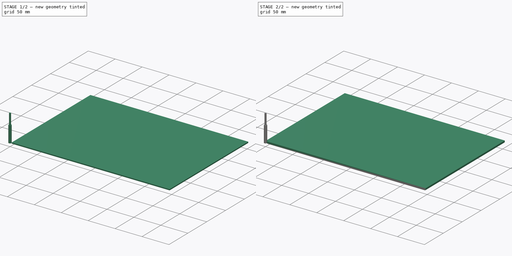
[diagram: build sequence overview — one tinted view per stage of 2, left to right]
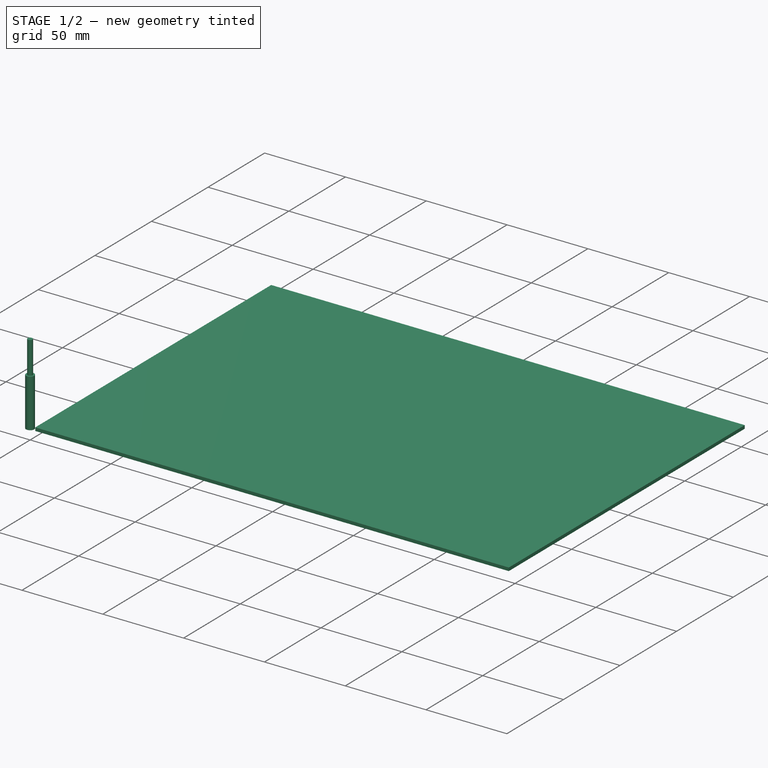
[diagram: stage 1 of 2 — iso view after this stage's code; geometry added in this stage tinted green]
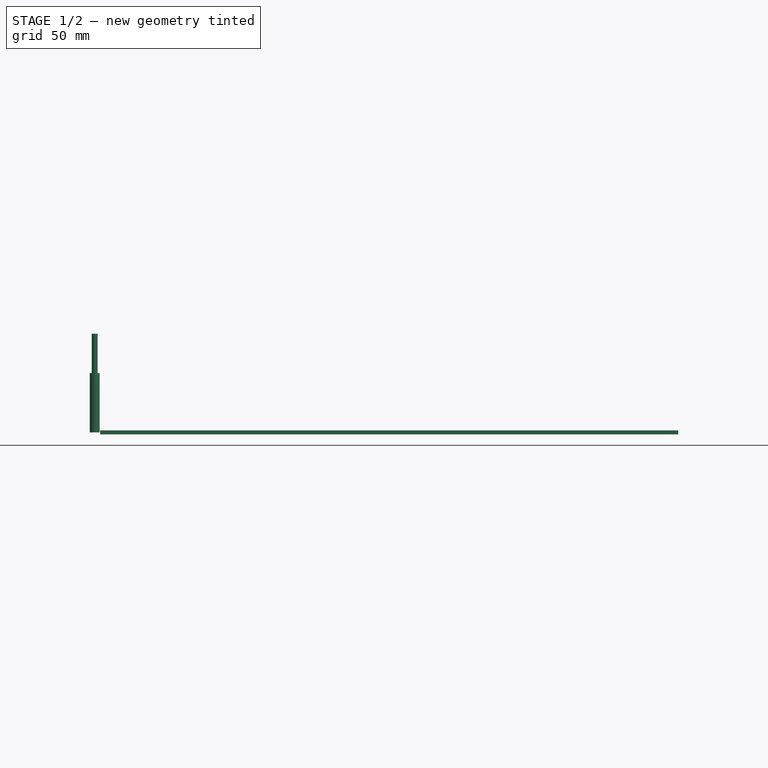
[diagram: stage 1 of 2 — front view after this stage's code; geometry added in this stage tinted green]
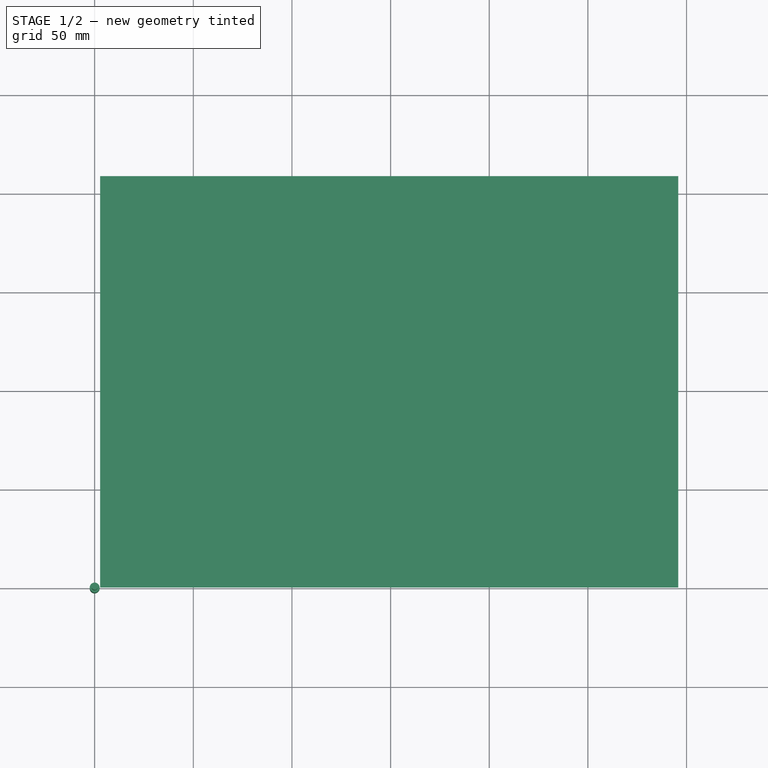
[diagram: stage 1 of 2 — top view after this stage's code; geometry added in this stage tinted green]
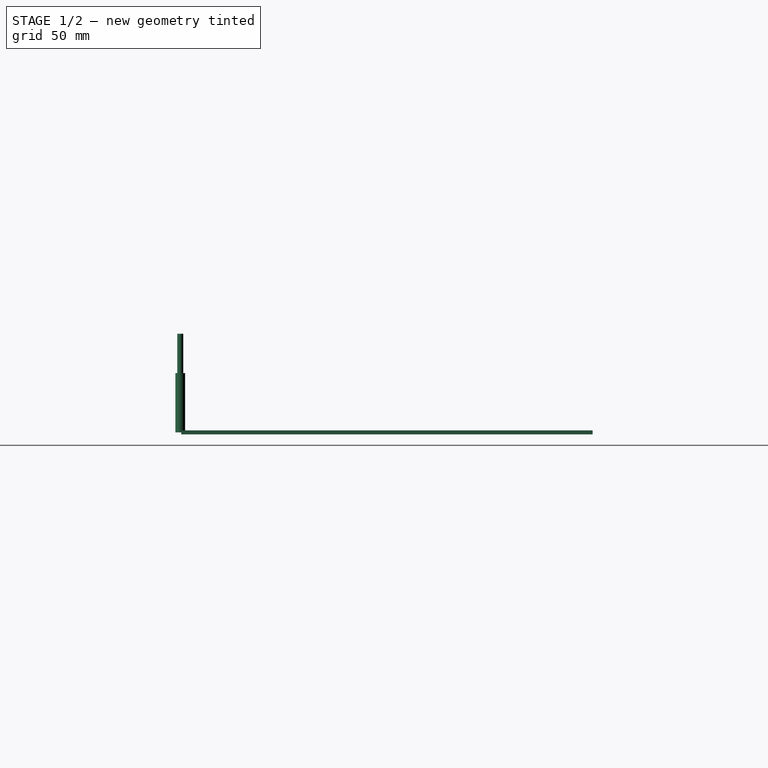
[diagram: stage 1 of 2 — right view after this stage's code; geometry added in this stage tinted green]
FCSTD DOCUMENT  (FreeCAD 0.20R29177 (Git))
Label: 1001_keyboard_paper_stencil_A4
License: All rights reserved
LicenseURL: http://en.wikipedia.org/wiki/All_rights_reserved
objects: Sketcher::SketchObject×6, Part::Part2DObjectPython×6, App::DocumentObjectGroup×3, Part::FeaturePython×3, Path::FeaturePython×3, PartDesign::Pad×1, PartDesign::Body×1, App::FeaturePython×1
note: 18 computed .brp shape members not serialized (recipe doc carries the construction recipe); baked Part::Feature solids carry a one-line shape summary decoded from their .brp

FEATURE [Part::FeaturePython] Stock  # WARN: FeaturePython — macro-defined, semantics opaque (R4)
  Base = -> Model
  ExtXneg = 1
  ExtXpos = 1
  ExtYneg = 1
  ExtYpos = 1
  ExtZneg = 1
  ExtZpos = 1
  Placement = pos=(3.79312,1.53857,0) rot=(0,0,1;0rad)
  StockType = FromBase
FEATURE [Part::FeaturePython] ToolBit001  label="Endmill003"  # Path/CAM toolbit (typed FeaturePython)
  BitPropertyNames = Chipload | CuttingEdgeHeight | Diameter | Flutes | Length | Material | ShankDiameter | SpindleDirection
  BitShape = <path> 0.20.0/Mod\Path\Tools\Shape\endmill.fcstd
  Chipload = 0
  CuttingEdgeHeight = 30
  Diameter = 5
  Flutes = 0
  Length = 50
  Material = 0
  ShankDiameter = 3
  ShapeName = endmill
  SpindleDirection = 0
FEATURE [Path::FeaturePython] TC__Default_Tool  label="TC: Default Tool"  # Path/CAM operation (typed FeaturePython)
  HorizFeed = 16.6667
  HorizRapid = 16.6667
  SpindleDir = 0
  SpindleSpeed = 1000
  Tool = -> ToolBit001
  ToolNumber = 1
  VertFeed = 16.6667
  VertRapid = 0.0333333
  expr: HorizRapid = SetupSheet.HorizRapid
  expr: VertRapid = SetupSheet.VertRapid
FEATURE [App::DocumentObjectGroup] Tools
  Group = -> [TC__Default_Tool]
FEATURE [Path::FeaturePython] Engrave  # Path/CAM operation (typed FeaturePython)
  Active = true
  ClearanceHeight = 6
  CoolantMode = 0
  CycleTime = 06:07:44
  FinalDepth = -5
  OpFinalDepth = -5
  OpStartDepth = 0
  OpStockZMax = 1
  OpStockZMin = -1
  OpToolDiameter = 5
  SafeHeight = 4
  StartDepth = 0
  StartVertex = 0
  StepDown = 5
  ToolController = -> TC__Default_Tool
  expr: ClearanceHeight = OpStockZMax + SetupSheet.ClearanceHeightOffset
  expr: FinalDepth = OpFinalDepth
  expr: SafeHeight = OpStockZMax + SetupSheet.SafeHeightOffset
  expr: StartDepth = OpStartDepth
  expr: StepDown = OpToolDiameter
FEATURE [App::DocumentObjectGroup] Operations
  Group = -> [Engrave]
FEATURE [Path::FeaturePython] Job  # Path/CAM operation (typed FeaturePython)
  CycleTime = 06:07:44
  Fixtures = G54
  GeometryTolerance = 0.01
  JobType = 0
  Model = -> Model
  Operations = -> Operations
  OrderOutputBy = 0
  PostProcessor = 8
  SetupSheet = -> SetupSheet
  SplitOutput = false
  Stock = -> Stock
  Tools = -> Tools
note: 2 file-system paths scrubbed to <path> (originals preserved in the JSON sidecar)
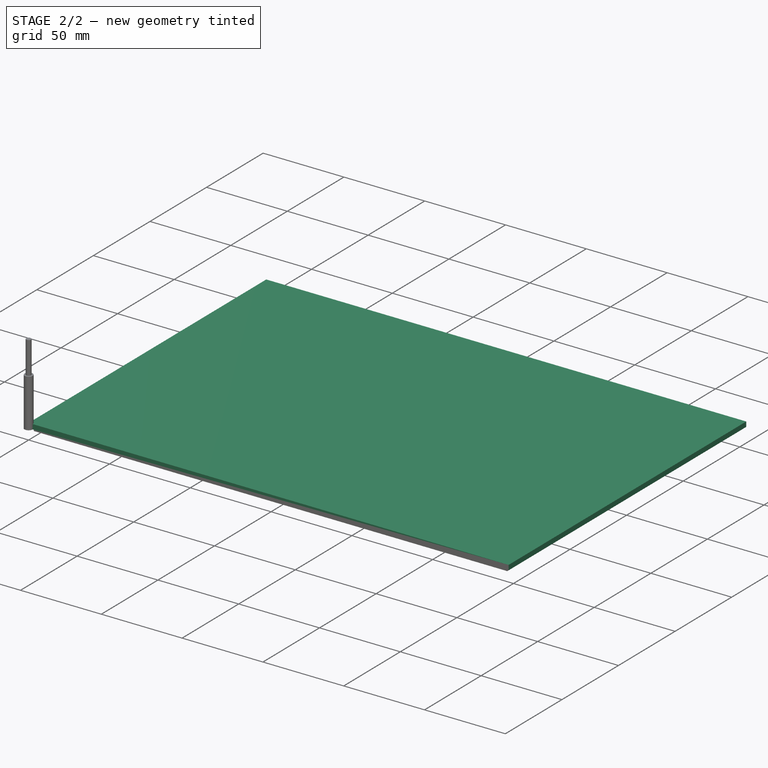
[diagram: stage 2 of 2 — iso view after this stage's code; geometry added in this stage tinted green]
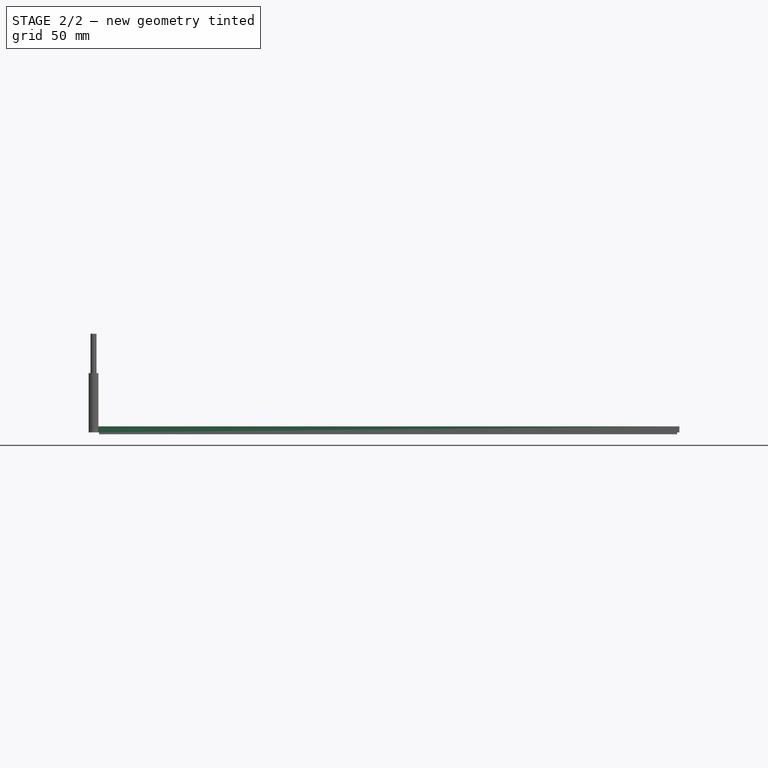
[diagram: stage 2 of 2 — front view after this stage's code; geometry added in this stage tinted green]
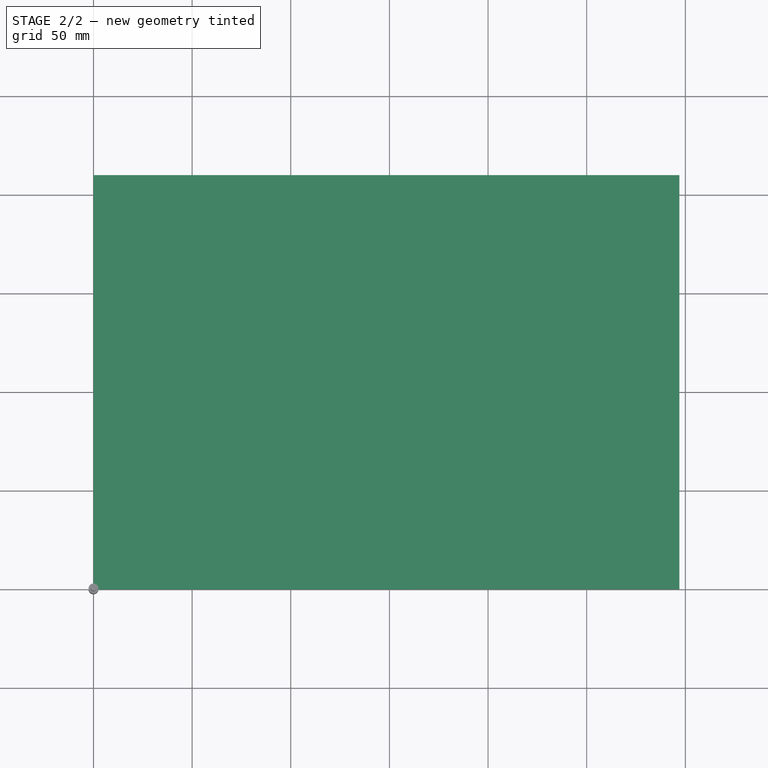
[diagram: stage 2 of 2 — top view after this stage's code; geometry added in this stage tinted green]
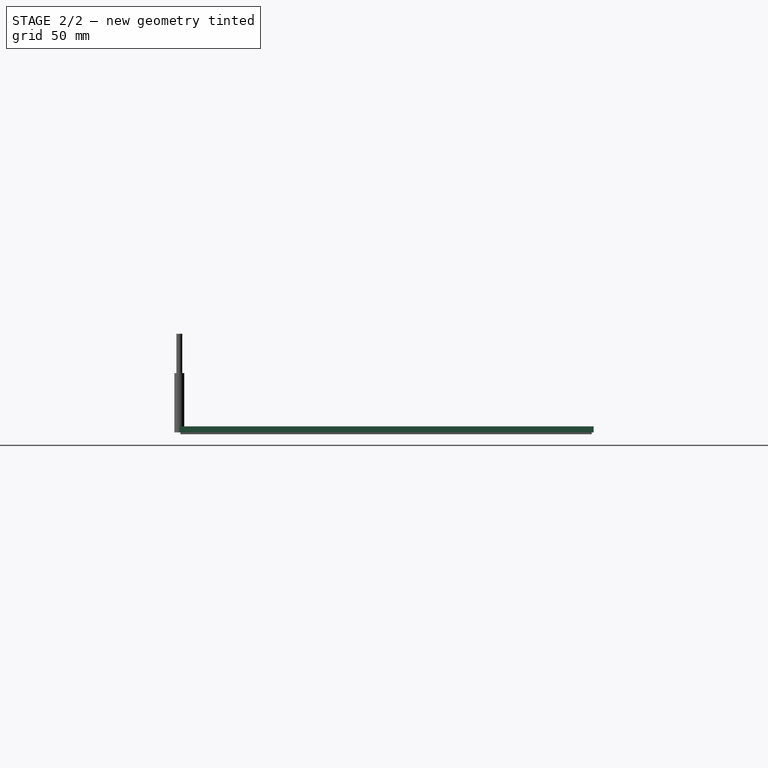
[diagram: stage 2 of 2 — right view after this stage's code; geometry added in this stage tinted green]
FEATURE [Sketcher::SketchObject] Sketch
  FullyConstrained = true
  MapMode = 5
  Support = -> [XY_Plane]
  sketch-geometry (5):
    g0: LineSegment StartX=0 StartY=210 StartZ=0 EndX=297 EndY=210 EndZ=0
    g1: LineSegment StartX=297 StartY=210 StartZ=0 EndX=297 EndY=0 EndZ=0
    g2: LineSegment StartX=297 StartY=0 StartZ=0 EndX=0 EndY=0 EndZ=0
    g3: LineSegment StartX=0 StartY=0 StartZ=0 EndX=0 EndY=105 EndZ=0
    g4: LineSegment StartX=0 StartY=105 StartZ=0 EndX=0 EndY=210 EndZ=0
  constraints (14):
    c: Coincident(g0,g1)
    c: Coincident(g1,g2)
    c: Horizontal(g0)
    c: Horizontal(g2)
    c: Vertical(g1)
    c: DistanceY(g1,g1) = 210
    c: DistanceX(g0,g0) = 297
    c: Coincident(g3,g2)
    c: Coincident(g4,g0)
    c: Equal(g3,g4)
    c: Vertical(g4)
    c: Vertical(g3)
    c: Coincident(g3,g4)
    c: Coincident(g2,g-1)
FEATURE [PartDesign::Pad] Pad  label="A4_Landscape"
  AllowMultiFace = false
  Direction = (0,0,1)
  Length = 3
  Length2 = 100
  Profile = -> Sketch
  ReferenceAxis = -> Sketch [N_Axis]
  Type = 0
FEATURE [PartDesign::Body] Body
  Group = -> [Sketch,Pad]
  Origin = -> Origin
  Tip = -> Pad
FEATURE [Sketcher::SketchObject] Sketch002  label="ButtonsLayoutSquare"
  FullyConstrained = false
  sketch-geometry (15):
    g0: LineSegment StartX=130.72 StartY=61.5386 StartZ=0 EndX=130.72 EndY=21.5386 EndZ=0
    g1: Circle CenterX=130.72 CenterY=61.5386 CenterZ=0 NormalX=0 NormalY=0 NormalZ=1 AngleXU=0 Radius=15
    g2: Circle CenterX=130.72 CenterY=21.5386 CenterZ=0 NormalX=0 NormalY=0 NormalZ=1 AngleXU=0 Radius=15
    g3: LineSegment StartX=130.72 StartY=61.5386 StartZ=0 EndX=170.72 EndY=61.5386 EndZ=0
    g4: LineSegment StartX=130.72 StartY=21.5386 StartZ=0 EndX=170.72 EndY=21.5386 EndZ=0
    g5: LineSegment StartX=170.72 StartY=21.5386 StartZ=0 EndX=170.72 EndY=61.5386 EndZ=0
    g6: Circle CenterX=170.72 CenterY=61.5386 CenterZ=0 NormalX=0 NormalY=0 NormalZ=1 AngleXU=0 Radius=14.5
    g7: Circle CenterX=170.72 CenterY=21.5386 CenterZ=0 NormalX=0 NormalY=0 NormalZ=1 AngleXU=0 Radius=15
    g8: LineSegment StartX=130.72 StartY=21.5386 StartZ=0 EndX=150.72 EndY=41.5386 EndZ=0
    g9: LineSegment StartX=150.72 StartY=41.5386 StartZ=0 EndX=170.72 EndY=61.5386 EndZ=0
    g10: LineSegment StartX=110.72 StartY=81.5386 StartZ=0 EndX=110.72 EndY=1.53857 EndZ=0
    g11: LineSegment StartX=110.72 StartY=1.53857 StartZ=0 EndX=190.72 EndY=1.53857 EndZ=0
    g12: LineSegment StartX=190.72 StartY=1.53857 StartZ=0 EndX=190.72 EndY=81.5386 EndZ=0
    g13: LineSegment StartX=190.72 StartY=81.5386 StartZ=0 EndX=110.72 EndY=81.5386 EndZ=0
    g14: Circle CenterX=150.72 CenterY=41.5386 CenterZ=0 NormalX=0 NormalY=0 NormalZ=1 AngleXU=0 Radius=56.5685
  constraints (35):
    c: Equal(g2,g1)
    c: Coincident(g3,g1)
    c: Coincident(g4,g2)
    c: Coincident(g5,g4)
    c: Coincident(g5,g3)
    c: Equal(g3,g5)
    c: Equal(g5,g4)
    c: Coincident(g6,g3)
    c: Coincident(g7,g4)
    c: Coincident(g1,g0)
    c: Coincident(g0,g2)
    c: Angle(g0,g3) = 1.5708
    c: Distance(g6,g1) = 40
    c: Diameter(g6) = 29
    c: Vertical(g5)
    c: Vertical(g0)
    c: Coincident(g8,g2)
    c: Coincident(g9,g8)
    c: Coincident(g9,g6)
    c: Equal(g9,g8)
    c: Parallel(g9,g8)
    c: Coincident(g10,g11)
    c: Coincident(g11,g12)
    c: Coincident(g12,g13)
    c: Coincident(g13,g10)
    c: Equal(g10,g11)
    c: Equal(g10,g12)
    c: Equal(g10,g13)
    c: PointOnObject(g10,g14)
    c: PointOnObject(g11,g14)
    c: PointOnObject(g12,g14)
    c: PointOnObject(g13,g14)
    c: Coincident(g14,g8)
    c: Horizontal(g13)
    c: DistanceX(g13,g13) = 80
FEATURE [Sketcher::SketchObject] Sketch003  label="JoystickLayout4Way"
  FullyConstrained = false
  sketch-geometry (39):
    g0: LineSegment StartX=5 StartY=60 StartZ=0 EndX=100 EndY=60 EndZ=0
    g1: LineSegment StartX=100 StartY=60 StartZ=0 EndX=100 EndY=5 EndZ=0
    g2: LineSegment StartX=100 StartY=5 StartZ=0 EndX=52.5 EndY=5 EndZ=0
    g3: LineSegment StartX=52.5 StartY=5 StartZ=0 EndX=5 EndY=5 EndZ=0
    g4: LineSegment StartX=5 StartY=5 StartZ=0 EndX=5 EndY=32.5 EndZ=0
    g5: LineSegment StartX=5 StartY=32.5 StartZ=0 EndX=5 EndY=60 EndZ=0
    g6: LineSegment StartX=5 StartY=32.5 StartZ=0 EndX=52.5 EndY=32.5 EndZ=0
    g7: Circle CenterX=52.5 CenterY=32.5 CenterZ=0 NormalX=0 NormalY=0 NormalZ=1 AngleXU=0 Radius=15
    g8: LineSegment StartX=52.5 StartY=32.5 StartZ=0 EndX=100 EndY=32.5 EndZ=0
    g9: ArcOfCircle CenterX=10.5 CenterY=52.5 CenterZ=0 NormalX=0 NormalY=0 NormalZ=1 AngleXU=0 Radius=2.6 StartAngle=1.5708 EndAngle=4.71239
    g10: ArcOfCircle CenterX=13.1 CenterY=52.5 CenterZ=0 NormalX=0 NormalY=0 NormalZ=1 AngleXU=0 Radius=2.6 StartAngle=4.71239 EndAngle=7.85398
    g11: LineSegment StartX=10.5 StartY=49.9 StartZ=0 EndX=13.1 EndY=49.9 EndZ=0
    g12: LineSegment StartX=13.1 StartY=55.1 StartZ=0 EndX=10.5 EndY=55.1 EndZ=0
    g13: LineSegment StartX=10.5 StartY=55.1 StartZ=0 EndX=7.9 EndY=55.1 EndZ=0
    g14: LineSegment StartX=13.1 StartY=55.1 StartZ=0 EndX=15.7 EndY=55.1 EndZ=0
    g15: ArcOfCircle CenterX=94.5 CenterY=52.5 CenterZ=0 NormalX=0 NormalY=0 NormalZ=1 AngleXU=0 Radius=2.6 StartAngle=4.71239 EndAngle=7.85398
    g16: LineSegment StartX=94.5 StartY=55.1 StartZ=0 EndX=91.9 EndY=55.1 EndZ=0
    g17: LineSegment StartX=91.9 StartY=49.9 StartZ=0 EndX=94.5 EndY=49.9 EndZ=0
    g18: ArcOfCircle CenterX=91.9 CenterY=52.5 CenterZ=0 NormalX=0 NormalY=0 NormalZ=1 AngleXU=0 Radius=2.6 StartAngle=1.5708 EndAngle=4.71239
    g19: LineSegment StartX=10.5 StartY=9.9 StartZ=0 EndX=13.1 EndY=9.9 EndZ=0
    g20: ArcOfCircle CenterX=13.1 CenterY=12.5 CenterZ=0 NormalX=0 NormalY=0 NormalZ=1 AngleXU=0 Radius=2.6 StartAngle=4.71239 EndAngle=7.85398
    g21: LineSegment StartX=13.1 StartY=15.1 StartZ=0 EndX=10.5 EndY=15.1 EndZ=0
    g22: ArcOfCircle CenterX=10.5 CenterY=12.5 CenterZ=0 NormalX=0 NormalY=0 NormalZ=1 AngleXU=0 Radius=2.6 StartAngle=1.5708 EndAngle=4.71239
    g23: ArcOfCircle CenterX=91.9 CenterY=12.5 CenterZ=0 NormalX=0 NormalY=0 NormalZ=1 AngleXU=0 Radius=2.6 StartAngle=1.5708 EndAngle=4.71239
    g24: LineSegment StartX=91.9 StartY=9.9 StartZ=0 EndX=94.5 EndY=9.9 EndZ=0
    g25: LineSegment StartX=94.5 StartY=15.1 StartZ=0 EndX=91.9 EndY=15.1 EndZ=0
    g26: ArcOfCircle CenterX=94.5 CenterY=12.5 CenterZ=0 NormalX=0 NormalY=0 NormalZ=1 AngleXU=0 Radius=2.6 StartAngle=4.71239 EndAngle=7.85398
    g27: LineSegment StartX=52.5 StartY=5 StartZ=0 EndX=52.5 EndY=7.9007 EndZ=0
    g28: LineSegment StartX=5 StartY=32.5 StartZ=0 EndX=7.9007 EndY=32.5 EndZ=0
    g29: LineSegment StartX=100 StartY=32.5 StartZ=0 EndX=97.0993 EndY=32.5 EndZ=0
    g30: LineSegment StartX=52.5 StartY=60 StartZ=0 EndX=52.5 EndY=57.0993 EndZ=0
    g31: LineSegment StartX=100 StartY=60 StartZ=0 EndX=43 EndY=60 EndZ=0
    g32: LineSegment StartX=43 StartY=60 StartZ=0 EndX=43 EndY=70 EndZ=0
    g33: LineSegment StartX=23 StartY=70 StartZ=0 EndX=23 EndY=60 EndZ=0
    g34: LineSegment StartX=23 StartY=60 StartZ=0 EndX=5 EndY=60 EndZ=0
    g35: LineSegment StartX=23 StartY=70 StartZ=0 EndX=33 EndY=70 EndZ=0
    g36: LineSegment StartX=33 StartY=70 StartZ=0 EndX=43 EndY=70 EndZ=0
    g37: LineSegment StartX=10.5 StartY=49.9 StartZ=0 EndX=10.5 EndY=32.5 EndZ=0
    g38: LineSegment StartX=10.5 StartY=32.5 StartZ=0 EndX=10.5 EndY=15.1 EndZ=0
  constraints (107):
    c: Coincident(g0,g1)
    c: Coincident(g1,g2)
    c: Horizontal(g0)
    c: Horizontal(g2)
    c: Vertical(g1)
    c: DistanceY(g1,g1) = 55
    c: DistanceX(g0,g0) = 95
    c: Coincident(g3,g2)
    c: Coincident(g4,g3)
    c: Coincident(g5,g4)
    c: Coincident(g5,g0)
    c: Vertical(g5)
    c: Vertical(g4)
    c: Horizontal(g3)
    c: Equal(g3,g2)
    c: Equal(g4,g5)
    c: Coincident(g6,g4)
    c: Horizontal(g6)
    c: Coincident(g7,g6)
    c: Coincident(g8,g6)
    c: PointOnObject(g8,g1)
    c: Horizontal(g8)
    c: Equal(g8,g6)
    c: Diameter(g7) = 30
    c: Tangent(g9,g11) = -1.5708
    c: Tangent(g11,g10) = -1.5708
    c: Tangent(g10,g12) = -1.5708
    c: Tangent(g12,g9) = -1.5708
    c: Equal(g9,g10)
    c: Horizontal(g11)
    c: DistanceY(g10,g10) = 5.2
    c: Coincident(g13,g9)
    c: Horizontal(g13)
    c: Coincident(g14,g10)
    c: Horizontal(g14)
    c: Equal(g14,g13)
    c: DistanceX(g13,g13) = 2.6
    c: DistanceX(g13,g14) = 7.8
    c: Tangent(g18,g17) = -1.5708
    c: Tangent(g17,g15) = -1.5708
    c: Tangent(g15,g16) = -1.5708
    c: Tangent(g16,g18) = -1.5708
    c: Equal(g18,g15)
    c: Horizontal(g17)
    c: Equal(g10,g15) = 5.2
    c: Tangent(g22,g19) = -1.5708
    c: Tangent(g19,g20) = -1.5708
    c: Tangent(g20,g21) = -1.5708
    c: Tangent(g21,g22) = -1.5708
    c: Equal(g22,g20)
    c: Horizontal(g19)
    c: Equal(g10,g20) = 5.2
    c: Tangent(g23,g24) = -1.5708
    c: Tangent(g24,g26) = -1.5708
    c: Tangent(g26,g25) = -1.5708
    c: Tangent(g25,g23) = -1.5708
    c: Equal(g23,g26)
    c: Horizontal(g24)
    c: Equal(g10,g26) = 5.2
    c: Equal(g21,g16)
    c: Equal(g16,g25)
    c: Equal(g25,g11)
    c: Vertical(g21,g9)
    c: DistanceX(g9,g6) = 42
    c: Horizontal(g23,g20)
    c: Vertical(g23,g17)
    c: DistanceX(g9,g15) = 84
    c: Horizontal(g10,g16)
    c: Coincident(g27,g2)
    c: Vertical(g27)
    c: Coincident(g28,g4)
    c: PointOnObject(g28,g6)
    c: Equal(g28,g27)
    c: Coincident(g29,g8)
    c: PointOnObject(g29,g8)
    c: Equal(g29,g27)
    c: PointOnObject(g30,g0)
    c: Vertical(g30)
    c: Equal(g30,g29)
    c: Vertical(g30,g27)
    c: Coincident(g31,g1)
    c: PointOnObject(g31,g0)
    c: Coincident(g32,g31)
    c: Vertical(g32)
    c: PointOnObject(g33,g0)
    c: Vertical(g33)
    c: Coincident(g34,g33)
    c: Coincident(g34,g5)
    c: DistanceX(g33,g32) = 20
    c: DistanceY(g33,g33) = 10
    c: Coincident(g35,g33)
    c: Horizontal(g35)
    c: Coincident(g36,g35)
    c: Coincident(g36,g32)
    c: Horizontal(g36)
    c: Equal(g36,g35)
    c: DistanceX(g5,g35) = 28
    c: Coincident(g37,g9)
    c: PointOnObject(g37,g6)
    c: Vertical(g37)
    c: Coincident(g38,g37)
    c: Coincident(g38,g21)
    c: Equal(g38,g37)
    c: DistanceY(g22,g9) = 40
    c: DistanceX(g-1,g3) = 5
    c: DistanceY(g-1,g3) = 5
    c: DistanceX(g7,g15) = 42
FEATURE [Sketcher::SketchObject] Sketch007  label="JoystickAnalog"
  FullyConstrained = false
  MapMode = 5
  Support = -> [XY_Plane]
  sketch-geometry (90):
    g0: Circle CenterX=243.803 CenterY=44.6561 CenterZ=0 NormalX=0 NormalY=0 NormalZ=1 AngleXU=0 Radius=20
    g1: LineSegment StartX=243.803 StartY=44.6561 StartZ=0 EndX=201.303 EndY=44.6561 EndZ=0
    g2: LineSegment StartX=243.803 StartY=44.6561 StartZ=0 EndX=286.303 EndY=44.6561 EndZ=0
    g3: LineSegment StartX=201.303 StartY=44.6561 StartZ=0 EndX=201.303 EndY=64.6561 EndZ=0
    g4: LineSegment StartX=201.303 StartY=44.6561 StartZ=0 EndX=201.303 EndY=24.6561 EndZ=0
    g5: LineSegment StartX=286.303 StartY=44.6561 StartZ=0 EndX=286.303 EndY=24.6561 EndZ=0
    g6: LineSegment StartX=286.303 StartY=44.6561 StartZ=0 EndX=286.303 EndY=64.6561 EndZ=0
    g7: LineSegment StartX=243.803 StartY=44.6561 StartZ=0 EndX=243.803 EndY=74.6561 EndZ=0
    g8: LineSegment StartX=243.803 StartY=44.6561 StartZ=0 EndX=243.803 EndY=14.6561 EndZ=0
    g9: LineSegment StartX=243.803 StartY=74.6561 StartZ=0 EndX=196.303 EndY=74.6561 EndZ=0
    g10: LineSegment StartX=243.803 StartY=74.6561 StartZ=0 EndX=291.303 EndY=74.6561 EndZ=0
    g11: LineSegment StartX=243.803 StartY=14.6561 StartZ=0 EndX=196.303 EndY=14.6561 EndZ=0
    g12: LineSegment StartX=196.303 StartY=14.6561 StartZ=0 EndX=196.303 EndY=74.6561 EndZ=0
    g13: LineSegment StartX=243.803 StartY=14.6561 StartZ=0 EndX=291.303 EndY=14.6561 EndZ=0
    g14: LineSegment StartX=291.303 StartY=14.6561 StartZ=0 EndX=291.303 EndY=74.6561 EndZ=0
    g15: ArcOfCircle CenterX=201.303 CenterY=64.6561 CenterZ=0 NormalX=0 NormalY=0 NormalZ=1 AngleXU=0 Radius=2.5 StartAngle=1.5708 EndAngle=4.71239
    g16: ArcOfCircle CenterX=206.303 CenterY=64.6561 CenterZ=0 NormalX=0 NormalY=0 NormalZ=1 AngleXU=0 Radius=2.5 StartAngle=4.71239 EndAngle=7.85398
    g17: LineSegment StartX=201.303 StartY=62.1561 StartZ=0 EndX=206.303 EndY=62.1561 EndZ=0
    g18: LineSegment StartX=206.303 StartY=67.1561 StartZ=0 EndX=201.303 EndY=67.1561 EndZ=0
    g19: ArcOfCircle CenterX=201.303 CenterY=24.6561 CenterZ=0 NormalX=0 NormalY=0 NormalZ=1 AngleXU=0 Radius=2.5 StartAngle=1.5708 EndAngle=4.71239
    g20: ArcOfCircle CenterX=206.303 CenterY=24.6561 CenterZ=0 NormalX=0 NormalY=0 NormalZ=1 AngleXU=0 Radius=2.5 StartAngle=4.71239 EndAngle=7.85398
    g21: LineSegment StartX=201.303 StartY=22.1561 StartZ=0 EndX=206.303 EndY=22.1561 EndZ=0
    g22: LineSegment StartX=206.303 StartY=27.1561 StartZ=0 EndX=201.303 EndY=27.1561 EndZ=0
    g23: ArcOfCircle CenterX=286.303 CenterY=24.6561 CenterZ=0 NormalX=0 NormalY=0 NormalZ=1 AngleXU=0 Radius=2.5 StartAngle=4.71239 EndAngle=7.85398
    g24: ArcOfCircle CenterX=281.303 CenterY=24.6561 CenterZ=0 NormalX=0 NormalY=0 NormalZ=1 AngleXU=0 Radius=2.5 StartAngle=1.5708 EndAngle=4.71239
    g25: LineSegment StartX=286.303 StartY=27.1561 StartZ=0 EndX=281.303 EndY=27.1561 EndZ=0
    g26: LineSegment StartX=281.303 StartY=22.1561 StartZ=0 EndX=286.303 EndY=22.1561 EndZ=0
    g27: ArcOfCircle CenterX=286.303 CenterY=64.6561 CenterZ=0 NormalX=0 NormalY=0 NormalZ=1 AngleXU=0 Radius=2.5 StartAngle=4.71239 EndAngle=7.85398
    g28: ArcOfCircle CenterX=281.303 CenterY=64.6561 CenterZ=0 NormalX=0 NormalY=0 NormalZ=1 AngleXU=0 Radius=2.5 StartAngle=1.5708 EndAngle=4.71239
    g29: LineSegment StartX=286.303 StartY=67.1561 StartZ=0 EndX=281.303 EndY=67.1561 EndZ=0
    g30: LineSegment StartX=281.303 StartY=62.1561 StartZ=0 EndX=286.303 EndY=62.1561 EndZ=0
    g31: LineSegment StartX=201.303 StartY=44.6561 StartZ=0 EndX=196.303 EndY=44.6561 EndZ=0
    g32: LineSegment StartX=286.303 StartY=44.6561 StartZ=0 EndX=291.303 EndY=44.6561 EndZ=0
    g33: LineSegment StartX=243.803 StartY=74.6561 StartZ=0 EndX=243.803 EndY=69.6561 EndZ=0
    g34: LineSegment StartX=196.303 StartY=14.6561 StartZ=0 EndX=236.303 EndY=14.6561 EndZ=0
    g35: LineSegment StartX=236.303 StartY=14.6561 StartZ=0 EndX=236.303 EndY=2.65615 EndZ=0
    g36: LineSegment StartX=236.303 StartY=2.65615 StartZ=0 EndX=251.303 EndY=2.65615 EndZ=0
    g37: LineSegment StartX=251.303 StartY=2.65615 StartZ=0 EndX=251.303 EndY=14.6561 EndZ=0
    g38: LineSegment StartX=251.303 StartY=14.6561 StartZ=0 EndX=291.303 EndY=14.6561 EndZ=0
    g39: LineSegment StartX=196.303 StartY=74.6561 StartZ=0 EndX=228.803 EndY=74.6561 EndZ=0
    g40: LineSegment StartX=228.803 StartY=74.6561 StartZ=0 EndX=228.803 EndY=78.6561 EndZ=0
    g41: LineSegment StartX=233.803 StartY=78.6561 StartZ=0 EndX=233.803 EndY=74.6561 EndZ=0
    g42: LineSegment StartX=233.803 StartY=74.6561 StartZ=0 EndX=243.803 EndY=74.6561 EndZ=0
    g43: LineSegment StartX=228.803 StartY=78.6561 StartZ=0 EndX=231.303 EndY=78.6561 EndZ=0
    g44: LineSegment StartX=231.303 StartY=78.6561 StartZ=0 EndX=233.803 EndY=78.6561 EndZ=0
    g45: Circle CenterX=242.711 CenterY=174.033 CenterZ=0 NormalX=0 NormalY=0 NormalZ=1 AngleXU=0 Radius=20
    g46: LineSegment StartX=242.711 StartY=174.033 StartZ=0 EndX=200.211 EndY=174.033 EndZ=0
    g47: LineSegment StartX=242.711 StartY=174.033 StartZ=0 EndX=285.211 EndY=174.033 EndZ=0
    g48: LineSegment StartX=200.211 StartY=174.033 StartZ=0 EndX=200.211 EndY=194.033 EndZ=0
    g49: LineSegment StartX=200.211 StartY=174.033 StartZ=0 EndX=200.211 EndY=154.033 EndZ=0
    g50: LineSegment StartX=285.211 StartY=174.033 StartZ=0 EndX=285.211 EndY=154.033 EndZ=0
    g51: LineSegment StartX=285.211 StartY=174.033 StartZ=0 EndX=285.211 EndY=194.033 EndZ=0
    g52: LineSegment StartX=242.711 StartY=174.033 StartZ=0 EndX=242.711 EndY=204.033 EndZ=0
    g53: LineSegment StartX=242.711 StartY=174.033 StartZ=0 EndX=242.711 EndY=144.033 EndZ=0
    g54: LineSegment StartX=242.711 StartY=204.033 StartZ=0 EndX=195.211 EndY=204.033 EndZ=0
    g55: LineSegment StartX=242.711 StartY=204.033 StartZ=0 EndX=290.211 EndY=204.033 EndZ=0
    g56: LineSegment StartX=242.711 StartY=144.033 StartZ=0 EndX=195.211 EndY=144.033 EndZ=0
    g57: LineSegment StartX=195.211 StartY=144.033 StartZ=0 EndX=195.211 EndY=204.033 EndZ=0
    g58: LineSegment StartX=242.711 StartY=144.033 StartZ=0 EndX=290.211 EndY=144.033 EndZ=0
    g59: LineSegment StartX=290.211 StartY=144.033 StartZ=0 EndX=290.211 EndY=204.033 EndZ=0
    g60: ArcOfCircle CenterX=200.211 CenterY=194.033 CenterZ=0 NormalX=0 NormalY=0 NormalZ=1 AngleXU=0 Radius=2.5 StartAngle=1.5708 EndAngle=4.71239
    g61: ArcOfCircle CenterX=205.211 CenterY=194.033 CenterZ=0 NormalX=0 NormalY=0 NormalZ=1 AngleXU=0 Radius=2.5 StartAngle=4.71239 EndAngle=7.85398
    g62: LineSegment StartX=200.211 StartY=191.533 StartZ=0 EndX=205.211 EndY=191.533 EndZ=0
    g63: LineSegment StartX=205.211 StartY=196.533 StartZ=0 EndX=200.211 EndY=196.533 EndZ=0
    g64: ArcOfCircle CenterX=200.211 CenterY=154.033 CenterZ=0 NormalX=0 NormalY=0 NormalZ=1 AngleXU=0 Radius=2.5 StartAngle=1.5708 EndAngle=4.71239
    g65: ArcOfCircle CenterX=205.211 CenterY=154.033 CenterZ=0 NormalX=0 NormalY=0 NormalZ=1 AngleXU=0 Radius=2.5 StartAngle=4.71239 EndAngle=7.85398
    g66: LineSegment StartX=200.211 StartY=151.533 StartZ=0 EndX=205.211 EndY=151.533 EndZ=0
    g67: LineSegment StartX=205.211 StartY=156.533 StartZ=0 EndX=200.211 EndY=156.533 EndZ=0
    g68: ArcOfCircle CenterX=285.211 CenterY=154.033 CenterZ=0 NormalX=0 NormalY=0 NormalZ=1 AngleXU=0 Radius=2.5 StartAngle=4.71239 EndAngle=7.85398
    g69: ArcOfCircle CenterX=280.211 CenterY=154.033 CenterZ=0 NormalX=0 NormalY=0 NormalZ=1 AngleXU=0 Radius=2.5 StartAngle=1.5708 EndAngle=4.71239
    g70: LineSegment StartX=285.211 StartY=156.533 StartZ=0 EndX=280.211 EndY=156.533 EndZ=0
    g71: LineSegment StartX=280.211 StartY=151.533 StartZ=0 EndX=285.211 EndY=151.533 EndZ=0
    g72: ArcOfCircle CenterX=285.211 CenterY=194.033 CenterZ=0 NormalX=0 NormalY=0 NormalZ=1 AngleXU=0 Radius=2.5 StartAngle=4.71239 EndAngle=7.85398
    g73: ArcOfCircle CenterX=280.211 CenterY=194.033 CenterZ=0 NormalX=0 NormalY=0 NormalZ=1 AngleXU=0 Radius=2.5 StartAngle=1.5708 EndAngle=4.71239
    g74: LineSegment StartX=285.211 StartY=196.533 StartZ=0 EndX=280.211 EndY=196.533 EndZ=0
    g75: LineSegment StartX=280.211 StartY=191.533 StartZ=0 EndX=285.211 EndY=191.533 EndZ=0
    g76: LineSegment StartX=200.211 StartY=174.033 StartZ=0 EndX=195.211 EndY=174.033 EndZ=0
    g77: LineSegment StartX=285.211 StartY=174.033 StartZ=0 EndX=290.211 EndY=174.033 EndZ=0
    g78: LineSegment StartX=242.711 StartY=204.033 StartZ=0 EndX=242.711 EndY=199.033 EndZ=0
    g79: LineSegment StartX=195.211 StartY=144.033 StartZ=0 EndX=235.211 EndY=144.033 EndZ=0
    g80: LineSegment StartX=235.211 StartY=144.033 StartZ=0 EndX=235.211 EndY=132.033 EndZ=0
    g81: LineSegment StartX=235.211 StartY=132.033 StartZ=0 EndX=250.211 EndY=132.033 EndZ=0
    g82: LineSegment StartX=250.211 StartY=132.033 StartZ=0 EndX=250.211 EndY=144.033 EndZ=0
    g83: LineSegment StartX=250.211 StartY=144.033 StartZ=0 EndX=290.211 EndY=144.033 EndZ=0
    g84: LineSegment StartX=195.211 StartY=204.033 StartZ=0 EndX=227.711 EndY=204.033 EndZ=0
    g85: LineSegment StartX=227.711 StartY=204.033 StartZ=0 EndX=227.711 EndY=208.033 EndZ=0
    g86: LineSegment StartX=232.711 StartY=208.033 StartZ=0 EndX=232.711 EndY=204.033 EndZ=0
    g87: LineSegment StartX=232.711 StartY=204.033 StartZ=0 EndX=242.711 EndY=204.033 EndZ=0
    g88: LineSegment StartX=227.711 StartY=208.033 StartZ=0 EndX=230.211 EndY=208.033 EndZ=0
    g89: LineSegment StartX=230.211 StartY=208.033 StartZ=0 EndX=232.711 EndY=208.033 EndZ=0
  constraints (234):
    c: Diameter(g0) = 40
    c: Coincident(g1,g0)
    c: Horizontal(g1)
    c: Coincident(g2,g0)
    c: Horizontal(g2)
    c: Coincident(g3,g1)
    c: Vertical(g3)
    c: Coincident(g4,g1)
    c: Vertical(g4)
    c: Coincident(g5,g2)
    c: Vertical(g5)
    c: Coincident(g6,g2)
    c: Vertical(g6)
    c: Equal(g4,g3)
    c: Equal(g3,g5)
    c: Equal(g5,g6)
    c: Equal(g2,g1)
    c: Coincident(g7,g0)
    c: Vertical(g7)
    c: Coincident(g8,g0)
    c: Vertical(g8)
    c: Equal(g8,g7)
    c: DistanceY(g4,g3) = 40
    c: DistanceX(g3,g6) = 85
    c: DistanceY(g8,g7) = 60
    c: Coincident(g9,g7)
    c: Coincident(g10,g9)
    c: Equal(g10,g9)
    c: Horizontal(g9)
    c: Horizontal(g10)
    c: DistanceX(g9,g10) = 95
    c: Coincident(g11,g8)
    c: Horizontal(g11)
    c: Coincident(g12,g9)
    c: Vertical(g12)
    c: Coincident(g13,g11)
    c: Coincident(g14,g13)
    c: Coincident(g14,g10)
    c: Horizontal(g13)
    c: Vertical(g14)
    c: Coincident(g11,g12)
    c: Tangent(g15,g17) = -1.5708
    c: Tangent(g17,g16) = -1.5708
    c: Tangent(g16,g18) = -1.5708
    c: Tangent(g18,g15) = -1.5708
    c: Equal(g15,g16)
    c: Coincident(g15,g3)
    c: Horizontal(g17)
    c: Tangent(g19,g21) = -1.5708
    c: Tangent(g21,g20) = -1.5708
    c: Tangent(g20,g22) = -1.5708
    c: Tangent(g22,g19) = -1.5708
    c: Equal(g19,g20)
    c: Coincident(g19,g4)
    c: Horizontal(g21)
    c: Tangent(g23,g25) = -1.5708
    c: Tangent(g25,g24) = -1.5708
    c: Tangent(g24,g26) = -1.5708
    c: Tangent(g26,g23) = -1.5708
    c: Equal(g23,g24)
    c: Coincident(g23,g5)
    c: Horizontal(g25)
    c: Tangent(g27,g29) = -1.5708
    c: Tangent(g29,g28) = -1.5708
    c: Tangent(g28,g30) = -1.5708
    c: Tangent(g30,g27) = -1.5708
    c: Equal(g27,g28)
    c: Coincident(g27,g6)
    c: Horizontal(g29)
    c: Equal(g18,g22)
    c: Equal(g22,g25)
    c: Equal(g25,g29)
    c: Equal(g20,g24)
    c: Equal(g24,g28)
    c: Equal(g28,g16)
    c: Diameter(g16) = 5
    c: DistanceX(g18,g18) = 5
    c: Coincident(g31,g1)
    c: PointOnObject(g31,g12)
    c: Horizontal(g31)
    c: Coincident(g32,g2)
    c: PointOnObject(g32,g14)
    c: Horizontal(g32)
    c: Coincident(g33,g9)
    c: PointOnObject(g33,g7)
    c: Equal(g33,g32)
    c: Coincident(g34,g12)
    c: PointOnObject(g34,g11)
    c: Coincident(g35,g34)
    c: Vertical(g35)
    c: Coincident(g36,g35)
    c: Horizontal(g36)
    c: Coincident(g37,g36)
    c: PointOnObject(g37,g13)
    c: Coincident(g38,g37)
    c: Coincident(g38,g14)
    c: Equal(g38,g34)
    c: DistanceX(g36,g36) = 15
    c: DistanceY(g35,g35) = 12
    c: Coincident(g39,g12)
    c: PointOnObject(g39,g9)
    c: Coincident(g40,g39)
    c: PointOnObject(g41,g9)
    c: Coincident(g42,g41)
    c: Coincident(g42,g10)
    c: Vertical(g40)
    c: Vertical(g41)
    c: Coincident(g43,g40)
    c: Horizontal(g43)
    c: Coincident(g44,g43)
    c: Coincident(g44,g41)
    c: Horizontal(g44)
    c: Equal(g44,g43)
    c: DistanceX(g12,g43) = 35
    c: DistanceX(g40,g41) = 5
    c: DistanceY(g40,g40) = 4
    c: Vertical(g37)
    c: Equal(g0,g45) = 40
    c: Coincident(g46,g45)
    c: Horizontal(g46)
    c: Coincident(g47,g45)
    c: Horizontal(g47)
    c: Coincident(g48,g46)
    c: Vertical(g48)
    c: Coincident(g49,g46)
    c: Vertical(g49)
    c: Coincident(g50,g47)
    c: Vertical(g50)
    c: Coincident(g51,g47)
    c: Vertical(g51)
    c: Equal(g49,g48)
    c: Equal(g48,g50)
    c: Equal(g50,g51)
    c: Equal(g47,g46)
    c: Coincident(g52,g45)
    c: Vertical(g52)
    c: Coincident(g53,g45)
    c: Vertical(g53)
    c: Equal(g53,g52)
    c: DistanceY(g49,g48) = 40
    c: DistanceX(g48,g51) = 85
    c: DistanceY(g53,g52) = 60
    c: Coincident(g54,g52)
    c: Coincident(g55,g54)
    c: Equal(g55,g54)
    c: Horizontal(g54)
    c: Horizontal(g55)
    c: DistanceX(g54,g55) = 95
    c: Coincident(g56,g53)
    c: Horizontal(g56)
    c: Coincident(g57,g54)
    c: Vertical(g57)
    c: Coincident(g58,g56)
    c: Coincident(g59,g58)
    c: Coincident(g59,g55)
    c: Horizontal(g58)
    c: Vertical(g59)
    c: Coincident(g56,g57)
    c: Tangent(g60,g62) = -1.5708
    c: Tangent(g62,g61) = -1.5708
    c: Tangent(g61,g63) = -1.5708
    c: Tangent(g63,g60) = -1.5708
    c: Equal(g60,g61)
    c: Coincident(g60,g48)
    c: Horizontal(g62)
    c: Tangent(g64,g66) = -1.5708
    c: Tangent(g66,g65) = -1.5708
    c: Tangent(g65,g67) = -1.5708
    c: Tangent(g67,g64) = -1.5708
    c: Equal(g64,g65)
    c: Coincident(g64,g49)
    c: Horizontal(g66)
    c: Tangent(g68,g70) = -1.5708
    c: Tangent(g70,g69) = -1.5708
    c: Tangent(g69,g71) = -1.5708
    c: Tangent(g71,g68) = -1.5708
    c: Equal(g68,g69)
    c: Coincident(g68,g50)
    c: Horizontal(g70)
    c: Tangent(g72,g74) = -1.5708
    c: Tangent(g74,g73) = -1.5708
    c: Tangent(g73,g75) = -1.5708
    c: Tangent(g75,g72) = -1.5708
    c: Equal(g72,g73)
    c: Coincident(g72,g51)
    c: Horizontal(g74)
    c: Equal(g63,g67)
    c: Equal(g67,g70)
    c: Equal(g70,g74)
    c: Equal(g65,g69)
    c: Equal(g69,g73)
    c: Equal(g73,g61)
    c: Equal(g16,g61) = 5
    c: Equal(g18,g63) = 5
    c: Coincident(g76,g46)
    c: PointOnObject(g76,g57)
    c: Horizontal(g76)
    c: Coincident(g77,g47)
    c: PointOnObject(g77,g59)
    c: Horizontal(g77)
    c: Coincident(g78,g54)
    c: PointOnObject(g78,g52)
    c: Equal(g78,g77)
    c: Coincident(g79,g57)
    c: PointOnObject(g79,g56)
    c: Coincident(g80,g79)
    c: Vertical(g80)
    c: Coincident(g81,g80)
    c: Horizontal(g81)
    c: Coincident(g82,g81)
    c: PointOnObject(g82,g58)
    c: Coincident(g83,g82)
    c: Coincident(g83,g59)
    c: Equal(g83,g79)
    c: Equal(g36,g81) = 15
    c: Equal(g35,g80) = 12
    c: Coincident(g84,g57)
    c: PointOnObject(g84,g54)
    c: Coincident(g85,g84)
    c: PointOnObject(g86,g54)
    c: Coincident(g87,g86)
    c: Coincident(g87,g55)
    c: Vertical(g85)
    c: Vertical(g86)
    c: Coincident(g88,g85)
    c: Horizontal(g88)
    c: Coincident(g89,g88)
    c: Coincident(g89,g86)
    c: Horizontal(g89)
    c: Equal(g89,g88)
    c: DistanceX(g57,g88) = 35
    c: DistanceX(g85,g86) = 5
    c: Equal(g40,g85) = 4
    c: Vertical(g82)
FEATURE [Sketcher::SketchObject] Sketch008  label="ButtonsLayoutLTLS"
  FullyConstrained = false
  sketch-geometry (10):
    g0: Circle CenterX=130.908 CenterY=145.635 CenterZ=0 NormalX=0 NormalY=0 NormalZ=1 AngleXU=0 Radius=15
    g1: Circle CenterX=170.908 CenterY=145.635 CenterZ=0 NormalX=0 NormalY=0 NormalZ=1 AngleXU=0 Radius=14.5
    g2: LineSegment StartX=190.908 StartY=165.635 StartZ=0 EndX=110.908 EndY=165.635 EndZ=0
    g3: LineSegment StartX=150.908 StartY=125.635 StartZ=0 EndX=110.908 EndY=125.635 EndZ=0
    g4: LineSegment StartX=150.908 StartY=125.635 StartZ=0 EndX=190.908 EndY=125.635 EndZ=0
    g5: LineSegment StartX=190.908 StartY=165.635 StartZ=0 EndX=190.908 EndY=125.635 EndZ=0
    g6: LineSegment StartX=110.908 StartY=165.635 StartZ=0 EndX=110.908 EndY=145.635 EndZ=0
    g7: LineSegment StartX=110.908 StartY=145.635 StartZ=0 EndX=110.908 EndY=125.635 EndZ=0
    g8: LineSegment StartX=130.908 StartY=145.635 StartZ=0 EndX=150.908 EndY=145.635 EndZ=0
    g9: LineSegment StartX=150.908 StartY=145.635 StartZ=0 EndX=170.908 EndY=145.635 EndZ=0
  constraints (26):
    c: Distance(g1,g0) = 40
    c: Diameter(g1) = 29
    c: Horizontal(g2)
    c: DistanceX(g2,g2) = 80
    c: Horizontal(g3)
    c: Coincident(g4,g3)
    c: Horizontal(g4)
    c: Coincident(g5,g2)
    c: Coincident(g5,g4)
    c: Vertical(g5)
    c: Coincident(g6,g2)
    c: Vertical(g6)
    c: Coincident(g7,g6)
    c: Coincident(g7,g3)
    c: Vertical(g7)
    c: Coincident(g8,g0)
    c: Horizontal(g8)
    c: Coincident(g9,g8)
    c: Coincident(g9,g1)
    c: Horizontal(g9)
    c: Horizontal(g0,g6)
    c: Vertical(g8,g3)
    c: Equal(g7,g6)
    c: Equal(g4,g3)
    c: Equal(g9,g8)
    c: DistanceY(g5,g5) = 40
FEATURE [Sketcher::SketchObject] Sketch009  label="ButtonsLayoutSelHotStart"
  FullyConstrained = false
  sketch-geometry (12):
    g0: Circle CenterX=234.806 CenterY=103.895 CenterZ=0 NormalX=0 NormalY=0 NormalZ=1 AngleXU=0 Radius=15
    g1: Circle CenterX=194.806 CenterY=103.895 CenterZ=0 NormalX=0 NormalY=0 NormalZ=1 AngleXU=0 Radius=15
    g2: LineSegment StartX=234.806 StartY=103.895 StartZ=0 EndX=274.806 EndY=103.895 EndZ=0
    g3: Circle CenterX=274.806 CenterY=103.895 CenterZ=0 NormalX=0 NormalY=0 NormalZ=1 AngleXU=0 Radius=14.5
    g4: LineSegment StartX=234.806 StartY=103.895 StartZ=0 EndX=194.806 EndY=103.895 EndZ=0
    g5: LineSegment StartX=234.806 StartY=103.895 StartZ=0 EndX=234.806 EndY=123.895 EndZ=0
    g6: LineSegment StartX=234.806 StartY=123.895 StartZ=0 EndX=174.806 EndY=123.895 EndZ=0
    g7: LineSegment StartX=174.806 StartY=123.895 StartZ=0 EndX=174.806 EndY=83.8953 EndZ=0
    g8: LineSegment StartX=174.806 StartY=83.8953 StartZ=0 EndX=294.806 EndY=83.8953 EndZ=0
    g9: LineSegment StartX=294.806 StartY=83.8953 StartZ=0 EndX=294.806 EndY=103.895 EndZ=0
    g10: LineSegment StartX=294.806 StartY=103.895 StartZ=0 EndX=294.806 EndY=123.895 EndZ=0
    g11: LineSegment StartX=294.806 StartY=123.895 StartZ=0 EndX=234.806 EndY=123.895 EndZ=0
  constraints (30):
    c: Equal(g1,g0)
    c: Coincident(g2,g0)
    c: Coincident(g3,g2)
    c: Distance(g3,g0) = 40
    c: Diameter(g3) = 29
    c: Coincident(g4,g0)
    c: Coincident(g4,g1)
    c: Equal(g4,g2)
    c: Horizontal(g4)
    c: Coincident(g5,g0)
    c: Vertical(g5)
    c: Coincident(g6,g5)
    c: Horizontal(g6)
    c: Coincident(g7,g6)
    c: Vertical(g7)
    c: Horizontal(g8)
    c: Coincident(g9,g8)
    c: Vertical(g9)
    c: Coincident(g10,g9)
    c: Vertical(g10)
    c: Coincident(g11,g10)
    c: Coincident(g11,g6)
    c: Horizontal(g11)
    c: Horizontal(g9,g3)
    c: Equal(g11,g6)
    c: Coincident(g8,g7)
    c: Equal(g9,g10)
    c: Horizontal(g2)
    c: DistanceY(g7,g7) = 40
    c: DistanceX(g6,g10) = 120
FEATURE [App::FeaturePython] SetupSheet  # Path/CAM operation (typed FeaturePython)
  ClearanceHeightExpression = OpStockZMax+SetupSheet.ClearanceHeightOffset
  ClearanceHeightOffset = 5
  CoolantMode = 0
  CoolantModes = None | Flood | Mist
  FinalDepthExpression = OpFinalDepth
  HorizRapid = 16.6667
  SafeHeightExpression = OpStockZMax+SetupSheet.SafeHeightOffset
  SafeHeightOffset = 3
  StartDepthExpression = OpStartDepth
  StepDownExpression = OpToolDiameter
  VertRapid = 0.0333333
FEATURE [Part::Part2DObjectPython] Clone2D  label="Model-ButtonsLayoutLTLS"  # Draft 2D object (typed FeaturePython)
  Fuse = false
  Objects = -> [Sketch008]
  PathResource = Model
  Scale = (1,1,1)
FEATURE [Part::Part2DObjectPython] Clone2D001  label="Model-ButtonsLayoutSelHotStart"  # Draft 2D object (typed FeaturePython)
  Fuse = false
  Objects = -> [Sketch009]
  PathResource = Model
  Scale = (1,1,1)
FEATURE [Part::Part2DObjectPython] Clone2D002  label="Model-ButtonsLayoutSquare"  # Draft 2D object (typed FeaturePython)
  Fuse = false
  Objects = -> [Sketch002]
  PathResource = Model
  Scale = (1,1,1)
FEATURE [Part::Part2DObjectPython] Clone2D003  label="Model-JoystickAnalog"  # Draft 2D object (typed FeaturePython)
  Fuse = false
  Objects = -> [Sketch007]
  PathResource = Model
  Scale = (1,1,1)
FEATURE [Part::Part2DObjectPython] Clone2D004  label="Model-JoystickLayout4Way"  # Draft 2D object (typed FeaturePython)
  Fuse = false
  Objects = -> [Sketch003]
  PathResource = Model
  Scale = (1,1,1)
FEATURE [Part::Part2DObjectPython] Clone2D005  label="Model-PCB002"  # Draft 2D object (typed FeaturePython)
  Fuse = false
  PathResource = Model
  Scale = (1,1,1)
FEATURE [App::DocumentObjectGroup] Model
  Group = -> [Clone2D,Clone2D001,Clone2D002,Clone2D003,Clone2D004,Clone2D005]
FEATURE [Part::FeaturePython] ToolBit  label="Endmill"  # Path/CAM toolbit (typed FeaturePython)
  BitPropertyNames = Chipload | CuttingEdgeHeight | Diameter | Flutes | Length | Material | ShankDiameter | SpindleDirection
  BitShape = <path> 0.20.0/Mod\Path\Tools\Shape\endmill.fcstd
  Chipload = 0
  CuttingEdgeHeight = 30
  Diameter = 5
  Flutes = 0
  Length = 50
  Material = 0
  ShankDiameter = 3
  ShapeName = endmill
  SpindleDirection = 0
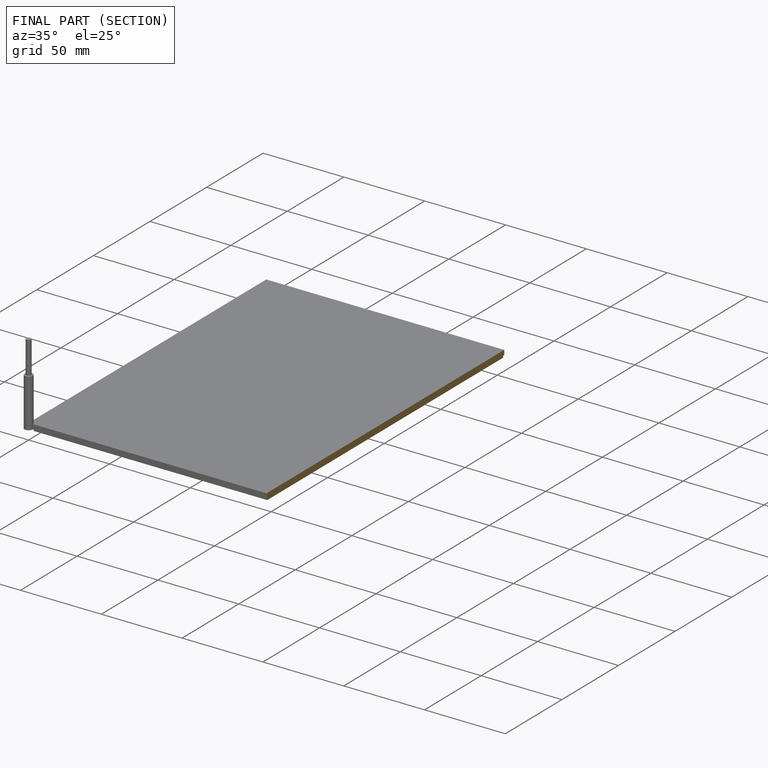
[diagram: finished part — half-section view (interior)]
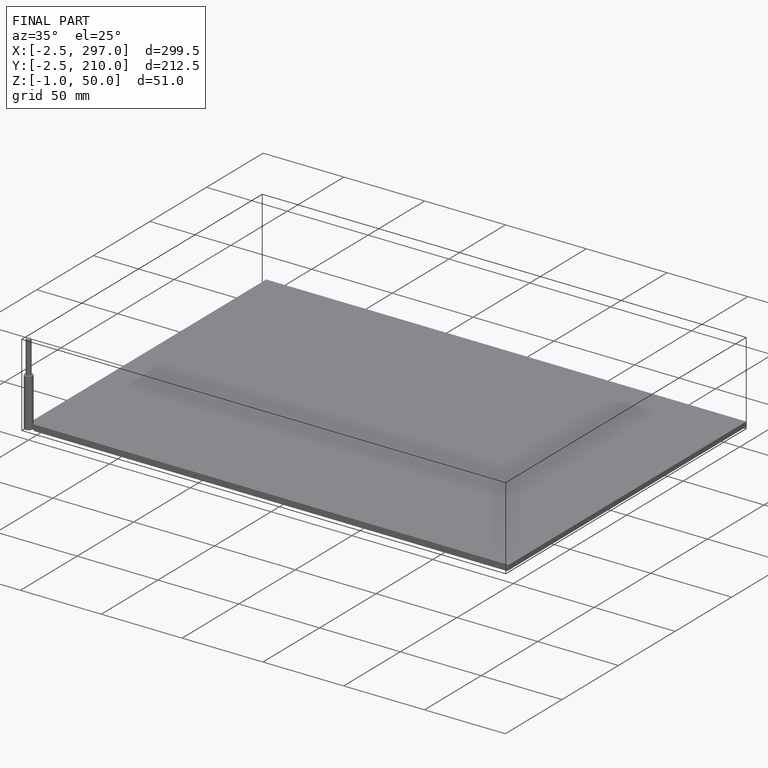
[diagram: finished part — iso view with bounding-box wireframe]
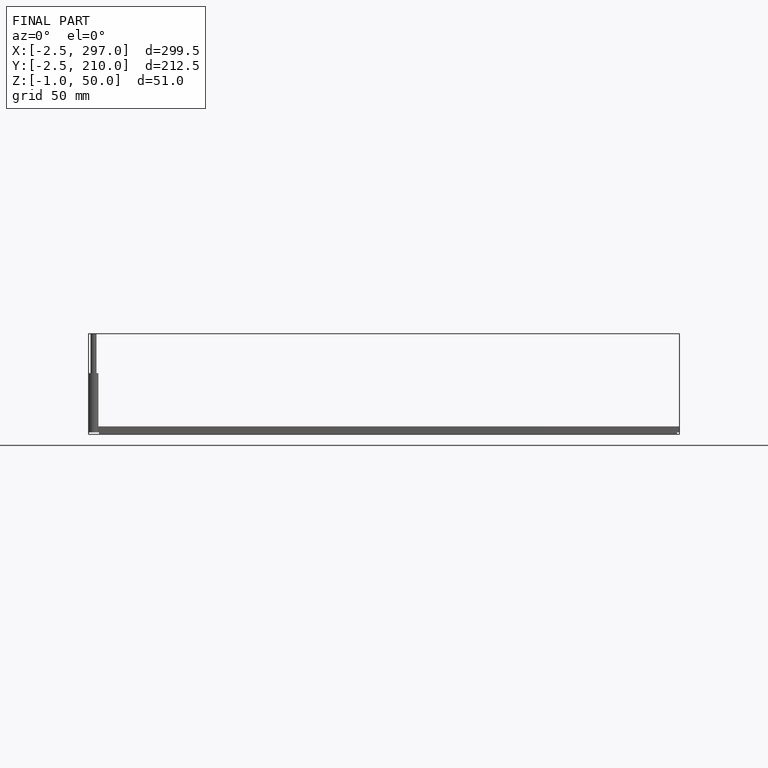
[diagram: finished part — front view with bounding-box wireframe]
